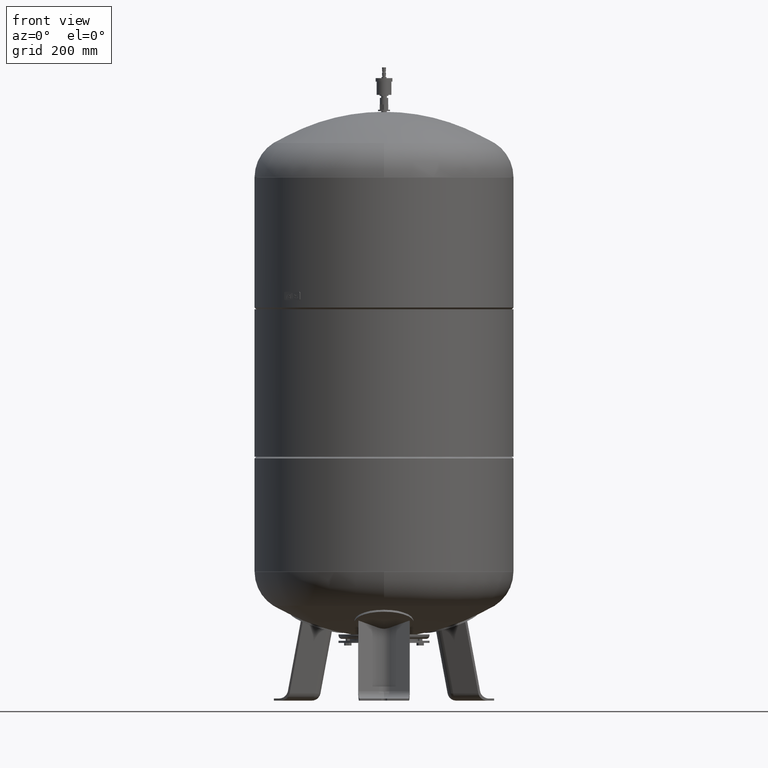
[diagram: clean part render]
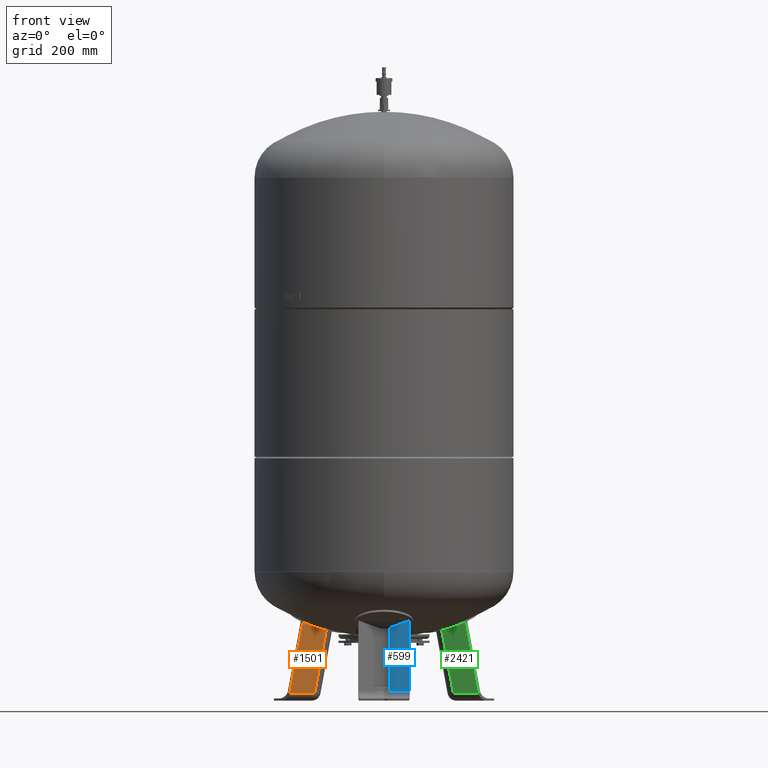
[diagram: same view with three faces highlighted in distinct colors, each labeled with its STEP entity id]
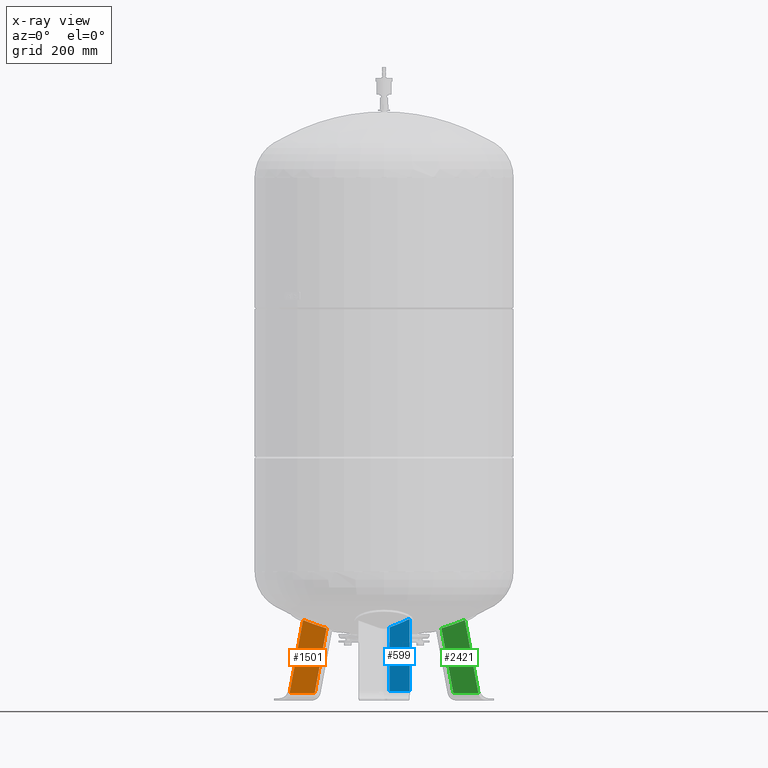
[diagram: x-ray of the same camera — body ghosted, the three highlighted faces saturated]
A machine part, front view with three faces highlighted in distinct colors.
The next image is the same camera in x-ray (body ghosted, the three faces saturated) — at least one of them is partly hidden behind the body in this view.
Their STEP definitions:

[orange] entity #1501 — the highlighted planar face has unit normal (0.3243, -0.9325, -0.1588).
#1280=CARTESIAN_POINT('',(-198.135653734647060,95.760904562808207,21.029948423057281));
#1281=VERTEX_POINT('',#1280);
#1348=CARTESIAN_POINT('',(-231.247438715379470,48.640281420860845,230.120878968208870));
#1349=VERTEX_POINT('',#1348);
#1357=CARTESIAN_POINT('',(-164.009331508000910,76.058063238802134,206.419109493446830));
#1358=VERTEX_POINT('',#1357);
#1359=CARTESIAN_POINT('',(-164.009331508000910,76.058063238802134,206.419109493446830));
#1360=CARTESIAN_POINT('',(-167.296726295767710,74.749478270491409,207.390483448243740));
#1361=CARTESIAN_POINT('',(-170.586376587281220,73.434638293147358,208.393982911335000));
#1362=CARTESIAN_POINT('',(-180.606511789459150,69.414767171695388,211.538240111227370));
#1363=CARTESIAN_POINT('',(-187.343946478440100,66.691476754780510,213.772030183208220));
#1364=CARTESIAN_POINT('',(-206.481753689465560,58.903361117512489,220.425795489886210));
#1365=CARTESIAN_POINT('',(-218.887273095988320,53.792416942164024,225.106085466333270));
#1366=CARTESIAN_POINT('',(-231.247438715379470,48.640281420860845,230.120878968208870));
#1367=B_SPLINE_CURVE_WITH_KNOTS('',3,(#1359,#1360,#1361,#1362,#1363,#1364,#1365,#1366),.UNSPECIFIED.,.F.,.U.,(4,2,2,4),(5.453253502265779,6.515864870681246,8.687819827574995,12.681292855444173),.UNSPECIFIED.);
#1368=EDGE_CURVE('',#1358,#1349,#1367,.T.);
#1459=CARTESIAN_POINT('',(-164.009331508000910,76.058063238802134,206.419109493446830));
#1460=DIRECTION('',(-0.180056805991956,0.103955845408880,-0.978147600733805));
#1461=VECTOR('',#1460,189.530865210230840);
#1462=LINE('',#1459,#1461);
#1463=EDGE_CURVE('',#1358,#1281,#1462,.T.);
#1478=CARTESIAN_POINT('',(-194.334005830255360,112.198790578796330,-67.735293817669458));
#1479=DIRECTION('',(0.324282864533177,-0.932535537409927,-0.158802063077709));
#1480=DIRECTION('',(-0.180056805991956,0.103955845408880,-0.978147600733806));
#1481=AXIS2_PLACEMENT_3D('',#1478,#1479,#1480);
#1482=PLANE('',#1481);
#1483=CARTESIAN_POINT('',(-269.736768022737690,70.862106057392296,21.029948423057284));
#1484=VERTEX_POINT('',#1483);
#1485=CARTESIAN_POINT('',(-269.736768022737690,70.862106057392296,21.029948423057284));
#1486=DIRECTION('',(0.180056805991955,-0.103955845408880,0.978147600733806));
#1487=VECTOR('',#1486,213.762146314412800);
#1488=LINE('',#1485,#1487);
#1489=EDGE_CURVE('',#1484,#1349,#1488,.T.);
#1490=ORIENTED_EDGE('',*,*,#1489,.F.);
#1491=CARTESIAN_POINT('',(-198.135653734647060,95.760904562808207,21.029948423057281));
#1492=DIRECTION('',(-0.944521094592691,-0.328450760190054,4.686537E-017));
#1493=VECTOR('',#1492,75.806792138366589);
#1494=LINE('',#1491,#1493);
#1495=EDGE_CURVE('',#1281,#1484,#1494,.T.);
#1496=ORIENTED_EDGE('',*,*,#1495,.F.);
#1497=ORIENTED_EDGE('',*,*,#1463,.F.);
#1498=ORIENTED_EDGE('',*,*,#1368,.T.);
#1499=EDGE_LOOP('',(#1490,#1496,#1497,#1498));
#1500=FACE_OUTER_BOUND('',#1499,.T.);
#1501=ADVANCED_FACE('',(#1500),#1482,.T.);

[blue] entity #599 — the highlighted planar face has unit normal (-0.6455, -0.7471, 0.1588).
#348=CARTESIAN_POINT('',(16.136450826554562,-187.380694359206100,209.306223167677190));
#349=VERTEX_POINT('',#348);
#367=CARTESIAN_POINT('',(72.837866169855076,-231.331363688051000,233.000000000000030));
#368=VERTEX_POINT('',#367);
#369=CARTESIAN_POINT('',(72.837866169855076,-231.331363688051000,233.000000000000030));
#370=CARTESIAN_POINT('',(61.407704358636664,-222.612666373158670,227.559845947390220));
#371=CARTESIAN_POINT('',(49.986371892525682,-213.819325055359460,222.506751583386380));
#372=CARTESIAN_POINT('',(32.821119649068990,-200.473342909909800,215.525731482895680));
#373=CARTESIAN_POINT('',(27.027584395690116,-195.946083784528160,213.276729921399780));
#374=CARTESIAN_POINT('',(19.549197401051885,-190.069381720623850,210.528203562929860));
#375=CARTESIAN_POINT('',(17.841674515575566,-188.725317218612670,209.911227339780880));
#376=CARTESIAN_POINT('',(16.136450826554562,-187.380694359206100,209.306223167677190));
#377=B_SPLINE_CURVE_WITH_KNOTS('',3,(#369,#370,#371,#372,#373,#374,#375,#376),.UNSPECIFIED.,.F.,.U.,(4,2,2,4),(536.144034177567730,540.433260676197730,542.629325785795340,543.280185670864850),.UNSPECIFIED.);
#378=EDGE_CURVE('',#368,#349,#377,.T.);
#539=CARTESIAN_POINT('',(72.837866169855033,-275.111649658243320,27.029948423057281));
#540=VERTEX_POINT('',#539);
#541=CARTESIAN_POINT('',(72.837866169855033,-275.111649658243320,27.029948423057281));
#542=DIRECTION('',(2.024612E-016,0.207911690817761,0.978147600733805));
#543=VECTOR('',#542,210.571545053552460);
#544=LINE('',#541,#543);
#545=EDGE_CURVE('',#540,#368,#544,.T.);
#576=CARTESIAN_POINT('',(72.837866169855033,-295.254623714758910,-67.735293817669458));
#577=DIRECTION('',(-0.645458033062182,-0.747104967402682,0.158802063077709));
#578=DIRECTION('',(1.145783E-016,0.207911690817760,0.978147600733806));
#579=AXIS2_PLACEMENT_3D('',#576,#577,#578);
#580=PLANE('',#579);
#581=CARTESIAN_POINT('',(16.136450826554562,-226.124712592942840,27.029948423057284));
#582=VERTEX_POINT('',#581);
#583=CARTESIAN_POINT('',(16.136450826554562,-226.124712592942840,27.029948423057284));
#584=DIRECTION('',(0.0,0.207911690817760,0.978147600733805));
#585=VECTOR('',#584,186.348435152196260);
#586=LINE('',#583,#585);
#587=EDGE_CURVE('',#582,#349,#586,.T.);
#588=ORIENTED_EDGE('',*,*,#587,.F.);
#589=CARTESIAN_POINT('',(72.837866169855033,-275.111649658243320,27.029948423057281));
#590=DIRECTION('',(-0.756707249513242,0.653753882232530,4.741265E-017));
#591=VECTOR('',#590,74.931772333057623);
#592=LINE('',#589,#591);
#593=EDGE_CURVE('',#540,#582,#592,.T.);
#594=ORIENTED_EDGE('',*,*,#593,.F.);
#595=ORIENTED_EDGE('',*,*,#545,.T.);
#596=ORIENTED_EDGE('',*,*,#378,.T.);
#597=EDGE_LOOP('',(#588,#594,#595,#596));
#598=FACE_OUTER_BOUND('',#597,.T.);
#599=ADVANCED_FACE('',(#598),#580,.T.);

[green] entity #2421 — the highlighted planar face has unit normal (-0.3243, -0.9325, -0.1588).
#2338=CARTESIAN_POINT('',(164.009331508000970,76.058063238802077,206.419109493446830));
#2339=VERTEX_POINT('',#2338);
#2355=CARTESIAN_POINT('',(231.247438715379450,48.640281420860788,230.120878968208760));
#2356=VERTEX_POINT('',#2355);
#2357=CARTESIAN_POINT('',(231.247438715379450,48.640281420860788,230.120878968208760));
#2358=CARTESIAN_POINT('',(218.887273095988350,53.792416942163953,225.106085466333040));
#2359=CARTESIAN_POINT('',(206.481753689465850,58.903361117512418,220.425795489885990));
#2360=CARTESIAN_POINT('',(187.343946478440390,66.691476754780382,213.772030183207990));
#2361=CARTESIAN_POINT('',(180.606511789459380,69.414767171695161,211.538240111227740));
#2362=CARTESIAN_POINT('',(170.586376587281620,73.434638293147088,208.393982911335310));
#2363=CARTESIAN_POINT('',(167.296726295767770,74.749478270491409,207.390483448243770));
#2364=CARTESIAN_POINT('',(164.009331508000970,76.058063238802077,206.419109493446830));
#2365=B_SPLINE_CURVE_WITH_KNOTS('',3,(#2357,#2358,#2359,#2360,#2361,#2362,#2363,#2364),.UNSPECIFIED.,.F.,.U.,(4,2,2,4),(536.762478861198470,540.755951889067660,542.927906845961390,543.990518214376830),.UNSPECIFIED.);
#2366=EDGE_CURVE('',#2356,#2339,#2365,.T.);
#2391=CARTESIAN_POINT('',(286.076618970567320,80.295923400640021,-67.735293817669458));
#2392=DIRECTION('',(-0.324282864533177,-0.932535537409927,-0.158802063077709));
#2393=DIRECTION('',(0.180056805991956,0.103955845408880,-0.978147600733806));
#2394=AXIS2_PLACEMENT_3D('',#2391,#2392,#2393);
#2395=PLANE('',#2394);
#2396=CARTESIAN_POINT('',(198.135653734647090,95.760904562808093,21.029948423057292));
#2397=VERTEX_POINT('',#2396);
#2398=CARTESIAN_POINT('',(198.135653734647090,95.760904562808093,21.029948423057292));
#2399=DIRECTION('',(-0.180056805991956,-0.103955845408880,0.978147600733805));
#2400=VECTOR('',#2399,189.530865210230810);
#2401=LINE('',#2398,#2400);
#2402=EDGE_CURVE('',#2397,#2339,#2401,.T.);
#2403=ORIENTED_EDGE('',*,*,#2402,.F.);
#2404=CARTESIAN_POINT('',(269.736768022737690,70.862106057392225,21.029948423057292));
#2405=VERTEX_POINT('',#2404);
#2406=CARTESIAN_POINT('',(269.736768022737690,70.862106057392225,21.029948423057292));
#2407=DIRECTION('',(-0.944521094592691,0.328450760190054,0.0));
#2408=VECTOR('',#2407,75.806792138366546);
#2409=LINE('',#2406,#2408);
#2410=EDGE_CURVE('',#2405,#2397,#2409,.T.);
#2411=ORIENTED_EDGE('',*,*,#2410,.F.);
#2412=CARTESIAN_POINT('',(269.736768022737690,70.862106057392225,21.029948423057292));
#2413=DIRECTION('',(-0.180056805991956,-0.103955845408880,0.978147600733805));
#2414=VECTOR('',#2413,213.762146314412720);
#2415=LINE('',#2412,#2414);
#2416=EDGE_CURVE('',#2405,#2356,#2415,.T.);
#2417=ORIENTED_EDGE('',*,*,#2416,.T.);
#2418=ORIENTED_EDGE('',*,*,#2366,.T.);
#2419=EDGE_LOOP('',(#2403,#2411,#2417,#2418));
#2420=FACE_OUTER_BOUND('',#2419,.T.);
#2421=ADVANCED_FACE('',(#2420),#2395,.T.);